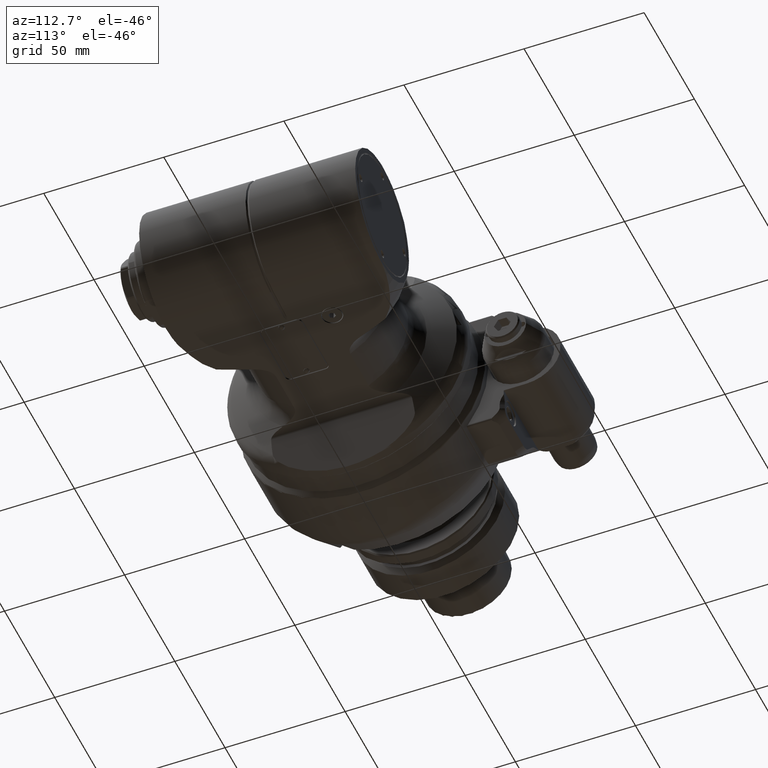
[diagram: clean part render]
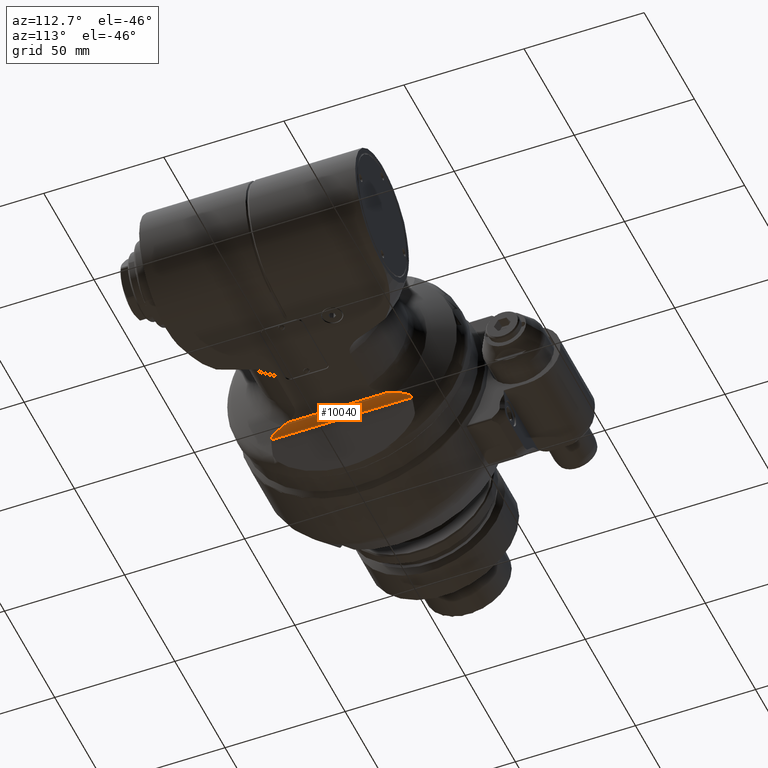
[diagram: same view with one face highlighted and labeled with its STEP entity id]
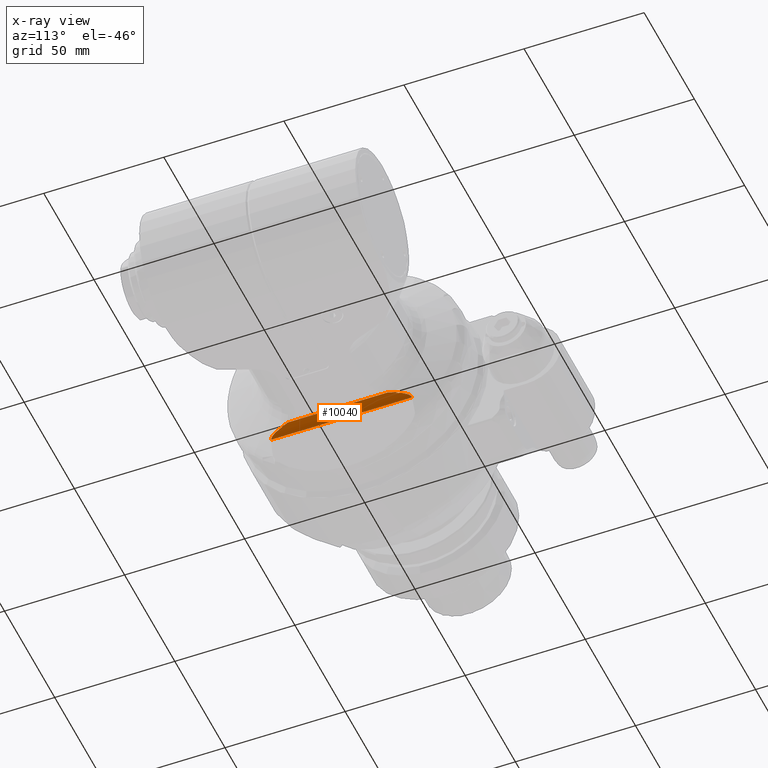
[diagram: x-ray of the same camera — body ghosted, the highlighted face saturated]
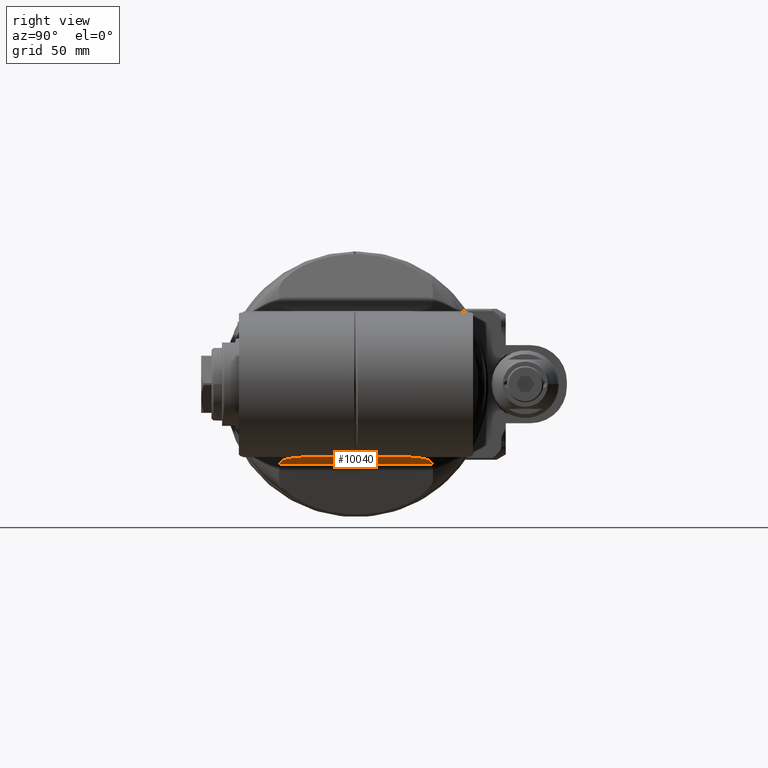
[diagram: same view with one face highlighted and labeled with its STEP entity id]
A machine part, auxiliary view. The second image highlights one B-rep face of the part: STEP entity #10040.
The next image is the same camera in x-ray: the body ghosted, the highlighted face saturated — about 0% of this face is hidden behind the body in this view.
A second angle (right view) of the same face is appended — the face is thin or edge-on in the first view.
In plain terms, the highlighted cylindrical surface (edge-blend (fillet) strip) has radius 4 mm, axis along (0, -1, 0).
Its self-contained STEP definition (entity closure, byte-faithful):
#182=B_SPLINE_CURVE_WITH_KNOTS('',3,(#18400,#18401,#18402,#18403,#18404,
#18405,#18406,#18407,#18408,#18409,#18410,#18411,#18412,#18413,#18414,#18415,
#18416,#18417,#18418,#18419,#18420,#18421,#18422,#18423,#18424,#18425,#18426,
#18427,#18428,#18429,#18430,#18431,#18432,#18433,#18434,#18435,#18436,#18437,
#18438,#18439,#18440,#18441,#18442,#18443,#18444,#18445,#18446,#18447,#18448,
#18449,#18450,#18451,#18452,#18453,#18454,#18455,#18456,#18457,#18458,#18459,
#18460,#18461,#18462,#18463,#18464,#18465,#18466,#18467,#18468,#18469,#18470,
#18471,#18472,#18473,#18474,#18475,#18476,#18477,#18478),.UNSPECIFIED.,
 .F.,.F.,(4,3,3,3,3,3,3,3,3,3,3,3,3,3,3,3,3,3,3,3,3,3,3,3,3,3,4),(0.,0.04545454545455,
0.0881916520855743,0.09090909090909,0.1363636363636,0.178471594217371,0.1818181818182,
0.224672502461205,0.2272727272727,0.270366553481768,0.2727272727273,0.3181818181818,
0.3636363636364,0.4090909090909,0.4545454545455,0.5,0.5454545454545,0.5909090909091,
0.6363636363636,0.6818181818182,0.7272727272727,0.7727272727273,0.8181818181818,
0.8636363636364,0.9090909090909,0.9545454545455,1.),.UNSPECIFIED.);
#185=B_SPLINE_CURVE_WITH_KNOTS('',3,(#18519,#18520,#18521,#18522,#18523,
#18524,#18525,#18526,#18527,#18528,#18529,#18530,#18531,#18532,#18533,#18534,
#18535,#18536,#18537,#18538,#18539,#18540),.UNSPECIFIED.,.F.,.F.,(4,3,3,
3,3,3,3,4),(0.,0.25,0.405745993273277,0.5,0.654235217093645,0.75,0.935671817189049,
1.),.UNSPECIFIED.);
#194=B_SPLINE_CURVE_WITH_KNOTS('',3,(#18803,#18804,#18805,#18806,#18807,
#18808,#18809,#18810,#18811,#18812,#18813,#18814,#18815,#18816,#18817,#18818,
#18819,#18820,#18821,#18822,#18823,#18824,#18825,#18826,#18827,#18828,#18829,
#18830,#18831,#18832,#18833,#18834,#18835,#18836,#18837,#18838,#18839,#18840,
#18841,#18842,#18843,#18844,#18845,#18846,#18847,#18848,#18849,#18850,#18851,
#18852,#18853,#18854,#18855,#18856,#18857,#18858,#18859,#18860,#18861,#18862,
#18863,#18864,#18865,#18866,#18867,#18868,#18869,#18870,#18871,#18872,#18873,
#18874,#18875,#18876,#18877,#18878,#18879,#18880,#18881),.UNSPECIFIED.,
 .F.,.F.,(4,3,3,3,3,3,3,3,3,3,3,3,3,3,3,3,3,3,3,3,3,3,3,3,3,3,4),(0.,0.04545454545455,
0.09090909090909,0.1363636363636,0.1818181818182,0.2272727272727,0.2727272727273,
0.3181818181818,0.3636363636364,0.4090909090909,0.4545454545455,0.5,0.5454545454545,
0.5909090909091,0.6363636363636,0.6818181818182,0.7272727272727,0.769764916217459,
0.7727272727273,0.815267368172266,0.8181818181818,0.860209138558512,0.8636363636364,
0.9090909090909,0.951719070606505,0.9545454545455,1.),.UNSPECIFIED.);
#195=B_SPLINE_CURVE_WITH_KNOTS('',3,(#18887,#18888,#18889,#18890,#18891,
#18892,#18893,#18894,#18895,#18896,#18897,#18898,#18899,#18900,#18901,#18902,
#18903,#18904,#18905,#18906,#18907,#18908),.UNSPECIFIED.,.F.,.F.,(4,3,3,
3,3,3,3,4),(0.,0.185666353462777,0.25,0.404241084728669,0.5,0.655753786499941,
0.75,1.),.UNSPECIFIED.);
#619=LINE('',#18312,#1259);
#630=LINE('',#18886,#1270);
#1259=VECTOR('',#12785,58.64425386089);
#1270=VECTOR('',#12838,41.77019528661);
#1736=CYLINDRICAL_SURFACE('',#10898,4.);
#2358=FACE_OUTER_BOUND('',#2974,.T.);
#2974=EDGE_LOOP('',(#7739,#7740,#7741,#7742,#7743,#7744));
#4474=VERTEX_POINT('',#18270);
#4477=VERTEX_POINT('',#18310);
#4479=VERTEX_POINT('',#18315);
#4485=VERTEX_POINT('',#18518);
#4512=VERTEX_POINT('',#18801);
#4513=VERTEX_POINT('',#18885);
#5681=EDGE_CURVE('',#4474,#4477,#619,.T.);
#5686=EDGE_CURVE('',#4479,#4474,#182,.T.);
#5690=EDGE_CURVE('',#4479,#4485,#185,.T.);
#5724=EDGE_CURVE('',#4477,#4512,#194,.T.);
#5726=EDGE_CURVE('',#4513,#4485,#630,.T.);
#5727=EDGE_CURVE('',#4513,#4512,#195,.T.);
#7739=ORIENTED_EDGE('',*,*,#5726,.T.);
#7740=ORIENTED_EDGE('',*,*,#5690,.F.);
#7741=ORIENTED_EDGE('',*,*,#5686,.T.);
#7742=ORIENTED_EDGE('',*,*,#5681,.T.);
#7743=ORIENTED_EDGE('',*,*,#5724,.T.);
#7744=ORIENTED_EDGE('',*,*,#5727,.F.);
#10040=ADVANCED_FACE('',(#2358),#1736,.F.);
#10898=AXIS2_PLACEMENT_3D('',#18884,#12836,#12837);
#12785=DIRECTION('',(0.,1.,0.));
#12836=DIRECTION('center_axis',(0.,-1.,0.));
#12837=DIRECTION('ref_axis',(-1.,0.,0.));
#12838=DIRECTION('',(-6.328002440236E-14,-1.,0.));
#18270=CARTESIAN_POINT('',(23.04205971778,-29.32212693045,-30.6319194267));
#18310=CARTESIAN_POINT('',(23.04205971778,29.32212693045,-30.6319194267));
#18312=CARTESIAN_POINT('',(23.04205971778,-29.32212693045,-30.6319194267));
#18315=CARTESIAN_POINT('',(25.73963757705,-23.42878235482,-28.1433343138));
#18400=CARTESIAN_POINT('Ctrl Pts',(25.7396375770523,-23.42878235482,-28.1433343138083));
#18401=CARTESIAN_POINT('Ctrl Pts',(25.6629018972856,-23.66062572872,-28.1644487540999));
#18402=CARTESIAN_POINT('Ctrl Pts',(25.5868221604862,-23.885803512055,-28.1878457280367));
#18403=CARTESIAN_POINT('Ctrl Pts',(25.5114735138903,-24.1045251552109,-28.2135030260659));
#18404=CARTESIAN_POINT('Ctrl Pts',(25.4406294847207,-24.3101708193043,-28.2376264370642));
#18405=CARTESIAN_POINT('Ctrl Pts',(25.3704332253594,-24.5101092117257,-28.2637525934038));
#18406=CARTESIAN_POINT('Ctrl Pts',(25.3011811941418,-24.7038332347343,-28.2917587920324));
#18407=CARTESIAN_POINT('Ctrl Pts',(25.2967778039015,-24.7161511762767,-28.2935395661056));
#18408=CARTESIAN_POINT('Ctrl Pts',(25.2923782245105,-24.7284439928009,-28.2953279251356));
#18409=CARTESIAN_POINT('Ctrl Pts',(25.2879825293452,-24.7407115539434,-28.2971238310456));
#18410=CARTESIAN_POINT('Ctrl Pts',(25.2144558232554,-24.9459108065433,-28.3271639136816));
#18411=CARTESIAN_POINT('Ctrl Pts',(25.1420176195036,-25.1440438087664,-28.3593198011266));
#18412=CARTESIAN_POINT('Ctrl Pts',(25.0709559457999,-25.3347378932813,-28.3934039508877));
#18413=CARTESIAN_POINT('Ctrl Pts',(25.0051261826505,-25.5113921397032,-28.4249786576034));
#18414=CARTESIAN_POINT('Ctrl Pts',(24.940477760286,-25.6816625243466,-28.4582084958873));
#18415=CARTESIAN_POINT('Ctrl Pts',(24.8772628277972,-25.8452178251754,-28.4928803041445));
#18416=CARTESIAN_POINT('Ctrl Pts',(24.8722387344895,-25.8582166066339,-28.4956358935753));
#18417=CARTESIAN_POINT('Ctrl Pts',(24.8672236794851,-25.8711729723108,-28.4984005693986));
#18418=CARTESIAN_POINT('Ctrl Pts',(24.8622177807548,-25.8840867559287,-28.5011742134852));
#18419=CARTESIAN_POINT('Ctrl Pts',(24.7981153531829,-26.049452641985,-28.5366917756149));
#18420=CARTESIAN_POINT('Ctrl Pts',(24.7355168723651,-26.207836019246,-28.5736833293981));
#18421=CARTESIAN_POINT('Ctrl Pts',(24.6746422354087,-26.3590417098445,-28.611884781281));
#18422=CARTESIAN_POINT('Ctrl Pts',(24.6709486115447,-26.3682162523978,-28.6142026890563));
#18423=CARTESIAN_POINT('Ctrl Pts',(24.6672613228357,-26.3773643698254,-28.6165250399573));
#18424=CARTESIAN_POINT('Ctrl Pts',(24.6635804139812,-26.386486018528,-28.6188517707397));
#18425=CARTESIAN_POINT('Ctrl Pts',(24.6025762862748,-26.5376601563151,-28.6574129488077));
#18426=CARTESIAN_POINT('Ctrl Pts',(24.5433275161035,-26.6815641781487,-28.6971801101506));
#18427=CARTESIAN_POINT('Ctrl Pts',(24.4860211998106,-26.8181162904655,-28.7378443801096));
#18428=CARTESIAN_POINT('Ctrl Pts',(24.4828819073489,-26.8255967401708,-28.7400720060398));
#18429=CARTESIAN_POINT('Ctrl Pts',(24.4797484337824,-26.8330551271728,-28.7423023163065));
#18430=CARTESIAN_POINT('Ctrl Pts',(24.4766208062658,-26.8404914380253,-28.7445352574784));
#18431=CARTESIAN_POINT('Ctrl Pts',(24.4163998005757,-26.9836741270701,-28.7875294958593));
#18432=CARTESIAN_POINT('Ctrl Pts',(24.358349927403,-27.1186723701399,-28.8315017072207));
#18433=CARTESIAN_POINT('Ctrl Pts',(24.302624037018,-27.2455783885614,-28.8760656276673));
#18434=CARTESIAN_POINT('Ctrl Pts',(24.2468981466328,-27.3724844069832,-28.9206295481139));
#18435=CARTESIAN_POINT('Ctrl Pts',(24.1934950100527,-27.4912982007568,-28.9657836183835));
#18436=CARTESIAN_POINT('Ctrl Pts',(24.1424556689279,-27.6023751514269,-29.0111800242143));
#18437=CARTESIAN_POINT('Ctrl Pts',(24.0914163278032,-27.7134521020967,-29.056576430045));
#18438=CARTESIAN_POINT('Ctrl Pts',(24.0427403335651,-27.8167922096633,-29.1022146941432));
#18439=CARTESIAN_POINT('Ctrl Pts',(23.9964221227554,-27.9128530355532,-29.1477560884235));
#18440=CARTESIAN_POINT('Ctrl Pts',(23.9501039119457,-28.0089138614433,-29.1932974827039));
#18441=CARTESIAN_POINT('Ctrl Pts',(23.906141839875,-28.0976954056567,-29.2387402760972));
#18442=CARTESIAN_POINT('Ctrl Pts',(23.8644157176552,-28.1798642257568,-29.2838501546356));
#18443=CARTESIAN_POINT('Ctrl Pts',(23.8226895954355,-28.2620330458568,-29.328960033174));
#18444=CARTESIAN_POINT('Ctrl Pts',(23.7832006876406,-28.3375891418434,-29.3737382062688));
#18445=CARTESIAN_POINT('Ctrl Pts',(23.7458997939461,-28.40704891935,-29.4178690566615));
#18446=CARTESIAN_POINT('Ctrl Pts',(23.7085989002516,-28.4765086968566,-29.4619999070541));
#18447=CARTESIAN_POINT('Ctrl Pts',(23.6734827489876,-28.5398721558832,-29.5054806702401));
#18448=CARTESIAN_POINT('Ctrl Pts',(23.6403115979381,-28.5979736648799,-29.5482410069084));
#18449=CARTESIAN_POINT('Ctrl Pts',(23.6071404468886,-28.6560751738766,-29.5910013435768));
#18450=CARTESIAN_POINT('Ctrl Pts',(23.5759158356702,-28.7089147328434,-29.633042409896));
#18451=CARTESIAN_POINT('Ctrl Pts',(23.5464915615518,-28.7571047575468,-29.674214106949));
#18452=CARTESIAN_POINT('Ctrl Pts',(23.5170672874334,-28.80529478225,-29.715385804002));
#18453=CARTESIAN_POINT('Ctrl Pts',(23.4894410183356,-28.84883527269,-29.7556865245394));
#18454=CARTESIAN_POINT('Ctrl Pts',(23.4633457880385,-28.8884876970216,-29.7951875830872));
#18455=CARTESIAN_POINT('Ctrl Pts',(23.4372505577412,-28.9281401213533,-29.8346886416351));
#18456=CARTESIAN_POINT('Ctrl Pts',(23.4126861669863,-28.9639044795767,-29.8733898178462));
#18457=CARTESIAN_POINT('Ctrl Pts',(23.3893888058789,-28.9964257302801,-29.9114436545307));
#18458=CARTESIAN_POINT('Ctrl Pts',(23.3660914447716,-29.0289469809834,-29.9494974912152));
#18459=CARTESIAN_POINT('Ctrl Pts',(23.3440642499498,-29.0582251241666,-29.9869059308214));
#18460=CARTESIAN_POINT('Ctrl Pts',(23.323226213775,-29.08460393554,-30.0235712740923));
#18461=CARTESIAN_POINT('Ctrl Pts',(23.3023881776001,-29.1109827469133,-30.0602366173633));
#18462=CARTESIAN_POINT('Ctrl Pts',(23.2827373878122,-29.1344622264767,-30.0961578371892));
#18463=CARTESIAN_POINT('Ctrl Pts',(23.264098397259,-29.1554859192867,-30.1314368758395));
#18464=CARTESIAN_POINT('Ctrl Pts',(23.2454594067058,-29.1765096120967,-30.1667159144897));
#18465=CARTESIAN_POINT('Ctrl Pts',(23.2278309305224,-29.1950775181533,-30.2013520290368));
#18466=CARTESIAN_POINT('Ctrl Pts',(23.2109865125993,-29.2115888398366,-30.2356241065396));
#18467=CARTESIAN_POINT('Ctrl Pts',(23.1941420946762,-29.22810016152,-30.2698961840425));
#18468=CARTESIAN_POINT('Ctrl Pts',(23.1780849164633,-29.24255489883,-30.3038057960086));
#18469=CARTESIAN_POINT('Ctrl Pts',(23.1627661022388,-29.255124565005,-30.3373245614712));
#18470=CARTESIAN_POINT('Ctrl Pts',(23.1474472880144,-29.26769423118,-30.3708433269337));
#18471=CARTESIAN_POINT('Ctrl Pts',(23.1328653336626,-29.27837882622,-30.4039705890378));
#18472=CARTESIAN_POINT('Ctrl Pts',(23.1189051758085,-29.287382063145,-30.436853138871));
#18473=CARTESIAN_POINT('Ctrl Pts',(23.1049450179544,-29.29638530007,-30.4697356887041));
#18474=CARTESIAN_POINT('Ctrl Pts',(23.0916071401552,-29.30370717888,-30.5023736977307));
#18475=CARTESIAN_POINT('Ctrl Pts',(23.0788121733576,-29.309466321215,-30.5348782294635));
#18476=CARTESIAN_POINT('Ctrl Pts',(23.06601720656,-29.31522546355,-30.5673827611961));
#18477=CARTESIAN_POINT('Ctrl Pts',(23.053766803655,-29.31942186941,-30.5997544725981));
#18478=CARTESIAN_POINT('Ctrl Pts',(23.0420597177759,-29.32212693045,-30.6319194266985));
#18518=CARTESIAN_POINT('',(26.80083020092,-20.88509764331,-28.));
#18519=CARTESIAN_POINT('Ctrl Pts',(25.7396375770281,-23.4287823548135,-28.1433343137922));
#18520=CARTESIAN_POINT('Ctrl Pts',(25.8081160249269,-23.2218867562388,-28.1244919173685));
#18521=CARTESIAN_POINT('Ctrl Pts',(25.8818712625986,-23.013544929358,-28.1061498421585));
#18522=CARTESIAN_POINT('Ctrl Pts',(25.9610203904603,-22.8034042125976,-28.0891536105012));
#18523=CARTESIAN_POINT('Ctrl Pts',(26.0103290286024,-22.6724899139616,-28.0785652305757));
#18524=CARTESIAN_POINT('Ctrl Pts',(26.0617329363928,-22.5408770832652,-28.0685011333579));
#18525=CARTESIAN_POINT('Ctrl Pts',(26.1150978683718,-22.4087859223856,-28.0592153668599));
#18526=CARTESIAN_POINT('Ctrl Pts',(26.1473931367893,-22.3288472934396,-28.0535958277657));
#18527=CARTESIAN_POINT('Ctrl Pts',(26.1804057156441,-22.2487330659975,-28.0482611871959));
#18528=CARTESIAN_POINT('Ctrl Pts',(26.2140977682486,-22.1684878706724,-28.0432658602776));
#18529=CARTESIAN_POINT('Ctrl Pts',(26.2692307140855,-22.0371763694271,-28.0350916153999));
#18530=CARTESIAN_POINT('Ctrl Pts',(26.3261861680598,-21.9055147845959,-28.0278257376251));
#18531=CARTESIAN_POINT('Ctrl Pts',(26.3847601497195,-21.7736838958296,-28.0216992881748));
#18532=CARTESIAN_POINT('Ctrl Pts',(26.4211287868136,-21.6918299802262,-28.0178953702847));
#18533=CARTESIAN_POINT('Ctrl Pts',(26.4581205408722,-21.6099102861192,-28.0145304486219));
#18534=CARTESIAN_POINT('Ctrl Pts',(26.4956785621474,-21.5279627922088,-28.0116566750903));
#18535=CARTESIAN_POINT('Ctrl Pts',(26.5684972523647,-21.3690803758688,-28.0060849112581));
#18536=CARTESIAN_POINT('Ctrl Pts',(26.6434467589727,-21.2100957879802,-28.002357183032));
#18537=CARTESIAN_POINT('Ctrl Pts',(26.7202898965813,-21.0507957349654,-28.0008103607679));
#18538=CARTESIAN_POINT('Ctrl Pts',(26.7469131045549,-20.9956043597353,-28.0002744460185));
#18539=CARTESIAN_POINT('Ctrl Pts',(26.7737633908558,-20.9403748784934,-27.9999999999992));
#18540=CARTESIAN_POINT('Ctrl Pts',(26.8008302009182,-20.8850976433091,-27.9999999999988));
#18801=CARTESIAN_POINT('',(25.73963757645,23.42878235651,-28.14333431396));
#18803=CARTESIAN_POINT('Ctrl Pts',(23.0420597177759,29.32212693045,-30.6319194266985));
#18804=CARTESIAN_POINT('Ctrl Pts',(23.0537386573638,29.31942837294,-30.5998318038977));
#18805=CARTESIAN_POINT('Ctrl Pts',(23.0659567229035,29.31524591011,-30.5675428000527));
#18806=CARTESIAN_POINT('Ctrl Pts',(23.0787141930736,29.3095104071967,-30.5351271645178));
#18807=CARTESIAN_POINT('Ctrl Pts',(23.0914716632438,29.3037749042833,-30.5027115289829));
#18808=CARTESIAN_POINT('Ctrl Pts',(23.1047668456781,29.2964863612867,-30.4701685897055));
#18809=CARTESIAN_POINT('Ctrl Pts',(23.1186802243078,29.28752703989,-30.4373831084574));
#18810=CARTESIAN_POINT('Ctrl Pts',(23.1325936029374,29.2785677184933,-30.4045976272093));
#18811=CARTESIAN_POINT('Ctrl Pts',(23.1471247060299,29.2679376186967,-30.3715694374213));
#18812=CARTESIAN_POINT('Ctrl Pts',(23.1623894463255,29.2554333058134,-30.3381489611563));
#18813=CARTESIAN_POINT('Ctrl Pts',(23.1776541866211,29.24292899293,-30.3047284848913));
#18814=CARTESIAN_POINT('Ctrl Pts',(23.1936540589658,29.22855046696,-30.2709163755198));
#18815=CARTESIAN_POINT('Ctrl Pts',(23.2104392310247,29.2121249711533,-30.2367380559615));
#18816=CARTESIAN_POINT('Ctrl Pts',(23.2272244030836,29.1956994753466,-30.2025597364032));
#18817=CARTESIAN_POINT('Ctrl Pts',(23.2447918272295,29.1772270097033,-30.1680137021979));
#18818=CARTESIAN_POINT('Ctrl Pts',(23.2633623638925,29.1563153691217,-30.1328306713112));
#18819=CARTESIAN_POINT('Ctrl Pts',(23.2819329005556,29.13540372854,-30.0976476404245));
#18820=CARTESIAN_POINT('Ctrl Pts',(23.3015078197858,29.11205291302,-30.061828345316));
#18821=CARTESIAN_POINT('Ctrl Pts',(23.3222570351388,29.085829705565,-30.0252775561342));
#18822=CARTESIAN_POINT('Ctrl Pts',(23.3430062504918,29.05960649811,-29.9887267669526));
#18823=CARTESIAN_POINT('Ctrl Pts',(23.3649316593514,29.03051089872,-29.9514455030746));
#18824=CARTESIAN_POINT('Ctrl Pts',(23.3881087609952,28.9982112806767,-29.9135359160825));
#18825=CARTESIAN_POINT('Ctrl Pts',(23.411285862639,28.9659116626334,-29.8756263290904));
#18826=CARTESIAN_POINT('Ctrl Pts',(23.4357115014947,28.9304080259366,-29.8370864620671));
#18827=CARTESIAN_POINT('Ctrl Pts',(23.4616453094799,28.8910693710133,-29.7977638044982));
#18828=CARTESIAN_POINT('Ctrl Pts',(23.487579117465,28.85173071609,-29.7584411469294));
#18829=CARTESIAN_POINT('Ctrl Pts',(23.5150209327329,28.80855704294,-29.7183356846438));
#18830=CARTESIAN_POINT('Ctrl Pts',(23.5442542746978,28.7607653890818,-29.6773478011657));
#18831=CARTESIAN_POINT('Ctrl Pts',(23.5734876166628,28.7129737352234,-29.6363599176875));
#18832=CARTESIAN_POINT('Ctrl Pts',(23.6045150126735,28.6605641006566,-29.5944913566253));
#18833=CARTESIAN_POINT('Ctrl Pts',(23.6374886400923,28.6029140715699,-29.5518843635277));
#18834=CARTESIAN_POINT('Ctrl Pts',(23.670462267511,28.5452640424832,-29.5092773704303));
#18835=CARTESIAN_POINT('Ctrl Pts',(23.7053801269275,28.4823736188766,-29.4659304201988));
#18836=CARTESIAN_POINT('Ctrl Pts',(23.7425164839733,28.4133431316883,-29.4218771928522));
#18837=CARTESIAN_POINT('Ctrl Pts',(23.7796528410192,28.3443126445001,-29.3778239655056));
#18838=CARTESIAN_POINT('Ctrl Pts',(23.819010574014,28.2691420937301,-29.3330669138859));
#18839=CARTESIAN_POINT('Ctrl Pts',(23.8606991701802,28.1871774506368,-29.2878736161305));
#18840=CARTESIAN_POINT('Ctrl Pts',(23.9023877663466,28.1052128075434,-29.242680318375));
#18841=CARTESIAN_POINT('Ctrl Pts',(23.9464071656254,28.0164540721266,-29.1970507212708));
#18842=CARTESIAN_POINT('Ctrl Pts',(23.9928661608185,27.9202229507148,-29.1512567771916));
#18843=CARTESIAN_POINT('Ctrl Pts',(24.0393251560114,27.8239918293033,-29.1054628331125));
#18844=CARTESIAN_POINT('Ctrl Pts',(24.0882265956876,27.7202883218967,-29.0595074254553));
#18845=CARTESIAN_POINT('Ctrl Pts',(24.1394881694882,27.6088304370452,-29.0138220763433));
#18846=CARTESIAN_POINT('Ctrl Pts',(24.1907497432888,27.4973725521934,-28.9681367272313));
#18847=CARTESIAN_POINT('Ctrl Pts',(24.2443706451371,27.3781602898966,-28.9227204643143));
#18848=CARTESIAN_POINT('Ctrl Pts',(24.3003006877096,27.2508677287831,-28.8779250243526));
#18849=CARTESIAN_POINT('Ctrl Pts',(24.3562307302819,27.1235751676699,-28.833129584391));
#18850=CARTESIAN_POINT('Ctrl Pts',(24.4144707347174,26.9882023077401,-28.7889560837628));
#18851=CARTESIAN_POINT('Ctrl Pts',(24.4748853475466,26.8446168588003,-28.7457749710468));
#18852=CARTESIAN_POINT('Ctrl Pts',(24.5313626287006,26.7103891382266,-28.7054080510385));
#18853=CARTESIAN_POINT('Ctrl Pts',(24.5897406141703,26.5689844058724,-28.6659090399355));
#18854=CARTESIAN_POINT('Ctrl Pts',(24.6498303046913,26.4205104633072,-28.6275825515776));
#18855=CARTESIAN_POINT('Ctrl Pts',(24.6540194766382,26.4101595550291,-28.6249106082133));
#18856=CARTESIAN_POINT('Ctrl Pts',(24.6582169515636,26.3997742887939,-28.6222443501963));
#18857=CARTESIAN_POINT('Ctrl Pts',(24.6624226581562,26.389354701128,-28.6195838745724));
#18858=CARTESIAN_POINT('Ctrl Pts',(24.7228175361092,26.2397271150054,-28.5813788554957));
#18859=CARTESIAN_POINT('Ctrl Pts',(24.7849133622595,26.0830219021391,-28.5443690458728));
#18860=CARTESIAN_POINT('Ctrl Pts',(24.8484897785067,25.9194535078017,-28.5088158348476));
#18861=CARTESIAN_POINT('Ctrl Pts',(24.8528454407354,25.9082473291731,-28.5063800609));
#18862=CARTESIAN_POINT('Ctrl Pts',(24.857208038424,25.8970089367574,-28.5039511090462));
#18863=CARTESIAN_POINT('Ctrl Pts',(24.861577494613,25.8857383995137,-28.5015290567048));
#18864=CARTESIAN_POINT('Ctrl Pts',(24.9245864789935,25.7232135738998,-28.4666022714143));
#18865=CARTESIAN_POINT('Ctrl Pts',(24.9890247173445,25.5540043658817,-28.4331133987135));
#18866=CARTESIAN_POINT('Ctrl Pts',(25.0546406421446,25.378454114135,-28.4012749445361));
#18867=CARTESIAN_POINT('Ctrl Pts',(25.0599914601594,25.3641384209187,-28.3986785965505));
#18868=CARTESIAN_POINT('Ctrl Pts',(25.0653500931223,25.3497805597415,-28.396093200445));
#18869=CARTESIAN_POINT('Ctrl Pts',(25.0707163959127,25.335380716793,-28.393518858815));
#18870=CARTESIAN_POINT('Ctrl Pts',(25.1418885099596,25.1443987121199,-28.3593759221896));
#18871=CARTESIAN_POINT('Ctrl Pts',(25.2144125985475,24.9460320536001,-28.3271812317504));
#18872=CARTESIAN_POINT('Ctrl Pts',(25.2879972714071,24.7406704120487,-28.2971178080607));
#18873=CARTESIAN_POINT('Ctrl Pts',(25.3570064164412,24.5480782490949,-28.268923741484));
#18874=CARTESIAN_POINT('Ctrl Pts',(25.426948523753,24.3493339599899,-28.2426043520745));
#18875=CARTESIAN_POINT('Ctrl Pts',(25.4975267288045,24.144960321713,-28.2182808063565));
#18876=CARTESIAN_POINT('Ctrl Pts',(25.5022062903457,24.1314096934841,-28.2166680772002));
#18877=CARTESIAN_POINT('Ctrl Pts',(25.5068886414358,24.1178343179852,-28.2150641042451));
#18878=CARTESIAN_POINT('Ctrl Pts',(25.5115736927635,24.1042343475937,-28.2134689151974));
#18879=CARTESIAN_POINT('Ctrl Pts',(25.5869197473434,23.8855165492748,-28.1878147243152));
#18880=CARTESIAN_POINT('Ctrl Pts',(25.662964171739,23.66043757722,-28.1644316187953));
#18881=CARTESIAN_POINT('Ctrl Pts',(25.7396375764536,23.42878235651,-28.143334313973));
#18884=CARTESIAN_POINT('Origin',(26.80083020092,0.,-32.));
#18885=CARTESIAN_POINT('',(26.80083020092,20.8850976433,-28.));
#18886=CARTESIAN_POINT('',(26.80083020092,20.8850976433,-28.));
#18887=CARTESIAN_POINT('Ctrl Pts',(26.8008302009211,20.8850976433006,-28.0000000000008));
#18888=CARTESIAN_POINT('Ctrl Pts',(26.7227087563756,21.0446412856129,-28.0000000000001));
#18889=CARTESIAN_POINT('Ctrl Pts',(26.6463928901632,21.2037890431315,-28.0022889732616));
#18890=CARTESIAN_POINT('Ctrl Pts',(26.5721284724062,21.3627636646567,-28.0065427155078));
#18891=CARTESIAN_POINT('Ctrl Pts',(26.5463957496313,21.4178485894094,-28.0080166430398));
#18892=CARTESIAN_POINT('Ctrl Pts',(26.5209091135228,21.4729124820064,-28.0097261420078));
#18893=CARTESIAN_POINT('Ctrl Pts',(26.4956780781621,21.527963848216,-28.0116567121194));
#18894=CARTESIAN_POINT('Ctrl Pts',(26.4351862131378,21.659950497458,-28.016285288987));
#18895=CARTESIAN_POINT('Ctrl Pts',(26.3761654535393,21.7918663231447,-28.0221888284104));
#18896=CARTESIAN_POINT('Ctrl Pts',(26.3188455773477,21.9235474366596,-28.0291461844364));
#18897=CARTESIAN_POINT('Ctrl Pts',(26.2832591499231,22.0053002369209,-28.033465583949));
#18898=CARTESIAN_POINT('Ctrl Pts',(26.2483275252368,22.0869620064021,-28.0381908092098));
#18899=CARTESIAN_POINT('Ctrl Pts',(26.2140975879367,22.1684883001233,-28.0432658870133));
#18900=CARTESIAN_POINT('Ctrl Pts',(26.1584219118805,22.3010924436687,-28.051520602331));
#18901=CARTESIAN_POINT('Ctrl Pts',(26.104604076846,22.4333402079416,-28.0607024921083));
#18902=CARTESIAN_POINT('Ctrl Pts',(26.0528058776902,22.565025499386,-28.070563734116));
#18903=CARTESIAN_POINT('Ctrl Pts',(26.0214629213086,22.6447079287586,-28.076530746158));
#18904=CARTESIAN_POINT('Ctrl Pts',(25.9908585723765,22.7241839285256,-28.0827462557422));
#18905=CARTESIAN_POINT('Ctrl Pts',(25.9610205635563,22.8034037530316,-28.0891535733284));
#18906=CARTESIAN_POINT('Ctrl Pts',(25.8818714717462,23.0135443559372,-28.1061497935165));
#18907=CARTESIAN_POINT('Ctrl Pts',(25.8081161521874,23.2218863716894,-28.1244918823193));
#18908=CARTESIAN_POINT('Ctrl Pts',(25.7396375764597,23.4287823565129,-28.1433343139635));